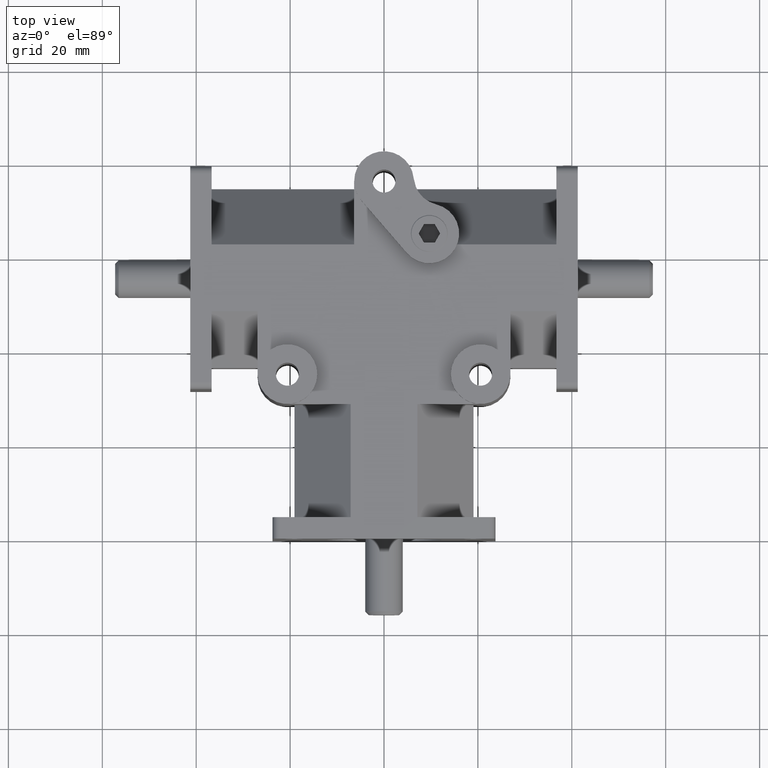
[diagram: clean part render]
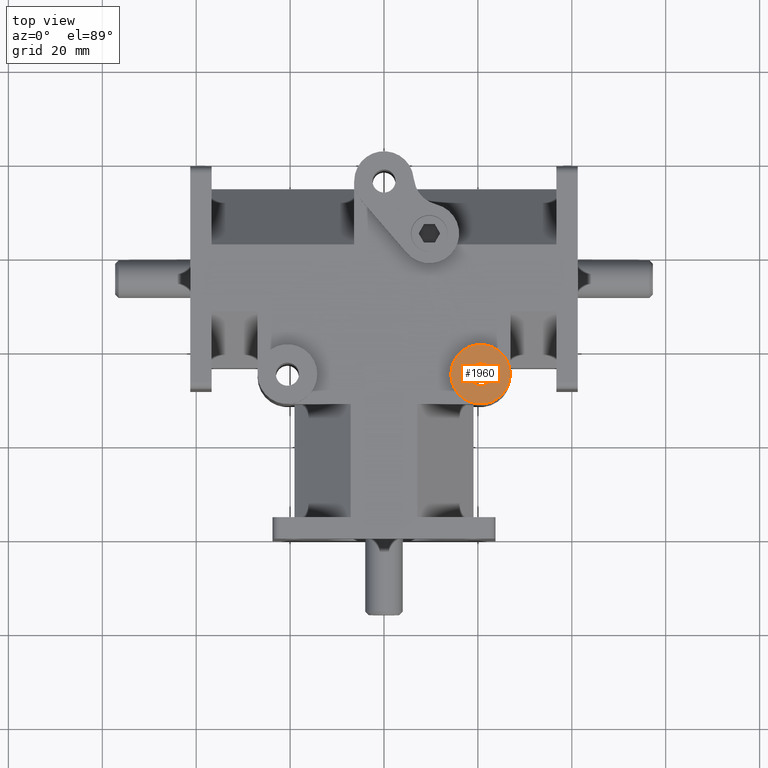
[diagram: same view with one face highlighted and labeled with its STEP entity id]
A machine part, top view. The second image highlights one B-rep face of the part: STEP entity #1960.
In plain terms, the highlighted planar face has unit normal (0, 0, 1).
Its self-contained STEP definition (entity closure, byte-faithful):
#382=PLANE('',#2166);
#576=VERTEX_POINT('',#3216);
#579=VERTEX_POINT('',#3225);
#684=CIRCLE('',#2162,6.35);
#687=CIRCLE('',#2167,2.4511);
#917=EDGE_CURVE('',#576,#576,#684,.T.);
#921=EDGE_CURVE('',#579,#579,#687,.T.);
#1320=ORIENTED_EDGE('',*,*,#921,.T.);
#1321=ORIENTED_EDGE('',*,*,#917,.F.);
#1620=EDGE_LOOP('',(#1320));
#1621=EDGE_LOOP('',(#1321));
#1819=FACE_BOUND('',#1620,.T.);
#1820=FACE_BOUND('',#1621,.T.);
#1960=ADVANCED_FACE('',(#1819,#1820),#382,.T.);
#2162=AXIS2_PLACEMENT_3D('',#3215,#2635,#2636);
#2166=AXIS2_PLACEMENT_3D('',#3223,#2643,$);
#2167=AXIS2_PLACEMENT_3D('',#3224,#2644,#2645);
#2635=DIRECTION('',(0.,0.,-1.));
#2636=DIRECTION('',(6.35,0.,0.));
#2643=DIRECTION('',(0.,0.,1.));
#2644=DIRECTION('',(0.,0.,-1.));
#2645=DIRECTION('',(2.4511,0.,0.));
#3215=CARTESIAN_POINT('',(20.574,34.9885,19.05));
#3216=CARTESIAN_POINT('',(26.924,34.9885,19.05));
#3223=CARTESIAN_POINT('',(21.1512727272727,34.9885,19.05));
#3224=CARTESIAN_POINT('',(20.574,34.9885,19.05));
#3225=CARTESIAN_POINT('',(23.0251,34.9885,19.05));